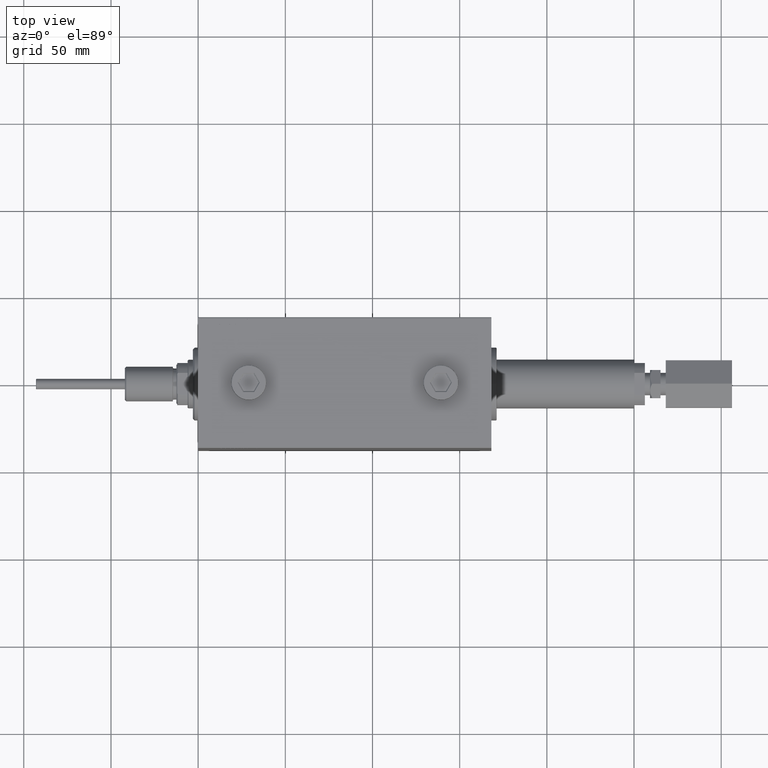
[diagram: clean part render]
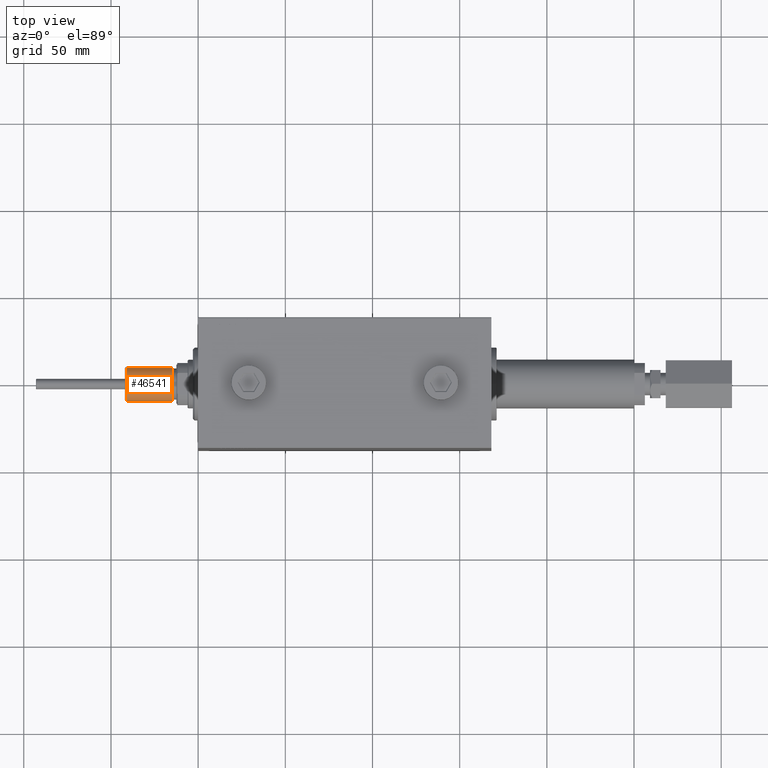
[diagram: same view with one face highlighted and labeled with its STEP entity id]
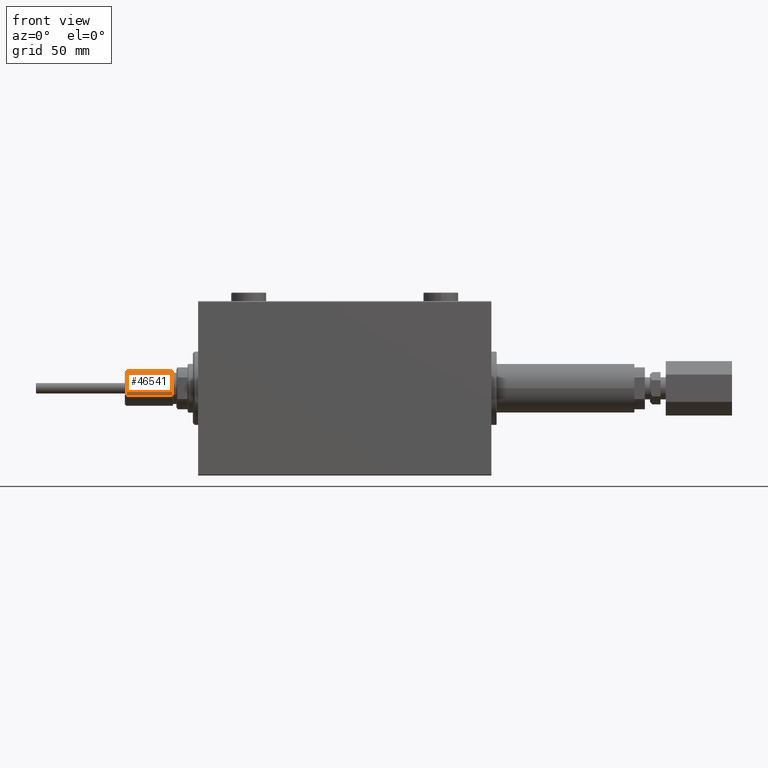
[diagram: same view with one face highlighted and labeled with its STEP entity id]
A machine part, top view. The second image highlights one B-rep face of the part: STEP entity #46541.
A second angle (front view) of the same face is appended — the face is thin or edge-on in the first view.
In plain terms, the highlighted cylindrical surface (edge-blend (fillet) strip) has radius 10 mm, axis along (-1, 0, 0).
Its self-contained STEP definition (entity closure, byte-faithful):
#149 = CIRCLE ( 'NONE', #35374, 10.00000000000000000 ) ;
#463 = DIRECTION ( 'NONE',  ( 1.000000000000000000, 0.000000000000000000, 0.000000000000000000 ) ) ;
#847 = AXIS2_PLACEMENT_3D ( 'NONE', #28318, #2336, #31988 ) ;
#2336 = DIRECTION ( 'NONE',  ( -0.000000000000000000, -0.000000000000000000, -1.000000000000000000 ) ) ;
#6896 = ORIENTED_EDGE ( 'NONE', *, *, #10957, .F. ) ;
#6944 = VERTEX_POINT ( 'NONE', #30708 ) ;
#10957 = EDGE_CURVE ( 'NONE', #19246, #6944, #20757, .T. ) ;
#13370 = CYLINDRICAL_SURFACE ( 'NONE', #847, 10.00000000000000000 ) ;
#14866 = EDGE_CURVE ( 'NONE', #21178, #6944, #29063, .T. ) ;
#15313 = EDGE_CURVE ( 'NONE', #25153, #19246, #149, .T. ) ;
#16538 = DIRECTION ( 'NONE',  ( -0.000000000000000000, -0.000000000000000000, 1.000000000000000000 ) ) ;
#17211 = VECTOR ( 'NONE', #44450, 1000.000000000000000 ) ;
#17741 = EDGE_LOOP ( 'NONE', ( #6896, #35948, #25313, #38781 ) ) ;
#19246 = VERTEX_POINT ( 'NONE', #35065 ) ;
#20458 = DIRECTION ( 'NONE',  ( 1.000000000000000000, 0.000000000000000000, 0.000000000000000000 ) ) ;
#20757 = LINE ( 'NONE', #40514, #17211 ) ;
#21178 = VERTEX_POINT ( 'NONE', #23567 ) ;
#22756 = CARTESIAN_POINT ( 'NONE',  ( 0.000000000000000000, 0.000000000000000000, 27.50000000000000000 ) ) ;
#23566 = AXIS2_PLACEMENT_3D ( 'NONE', #35649, #16538, #20458 ) ;
#23567 = CARTESIAN_POINT ( 'NONE',  ( -10.00000000000000000, 0.000000000000000000, 0.7999999999999986011 ) ) ;
#23737 = DIRECTION ( 'NONE',  ( -0.000000000000000000, -0.000000000000000000, -1.000000000000000000 ) ) ;
#24459 = LINE ( 'NONE', #47028, #38400 ) ;
#25153 = VERTEX_POINT ( 'NONE', #40532 ) ;
#25313 = ORIENTED_EDGE ( 'NONE', *, *, #44364, .T. ) ;
#28318 = CARTESIAN_POINT ( 'NONE',  ( 0.000000000000000000, 0.000000000000000000, 27.50000000000000000 ) ) ;
#28559 = FACE_OUTER_BOUND ( 'NONE', #17741, .T. ) ;
#29063 = CIRCLE ( 'NONE', #23566, 10.00000000000000000 ) ;
#30708 = CARTESIAN_POINT ( 'NONE',  ( 10.00000000000000000, 1.224646799147353256E-15, 0.7999999999999986011 ) ) ;
#31988 = DIRECTION ( 'NONE',  ( -1.000000000000000000, 0.000000000000000000, 0.000000000000000000 ) ) ;
#35065 = CARTESIAN_POINT ( 'NONE',  ( 10.00000000000000000, 1.224646799147353256E-15, 27.50000000000000000 ) ) ;
#35374 = AXIS2_PLACEMENT_3D ( 'NONE', #22756, #41378, #463 ) ;
#35649 = CARTESIAN_POINT ( 'NONE',  ( 0.000000000000000000, 0.000000000000000000, 0.7999999999999986011 ) ) ;
#35948 = ORIENTED_EDGE ( 'NONE', *, *, #15313, .F. ) ;
#38400 = VECTOR ( 'NONE', #23737, 1000.000000000000000 ) ;
#38781 = ORIENTED_EDGE ( 'NONE', *, *, #14866, .T. ) ;
#40514 = CARTESIAN_POINT ( 'NONE',  ( 10.00000000000000000, 1.224646799147353256E-15, 27.50000000000000000 ) ) ;
#40532 = CARTESIAN_POINT ( 'NONE',  ( -10.00000000000000000, 0.000000000000000000, 27.50000000000000000 ) ) ;
#41378 = DIRECTION ( 'NONE',  ( 0.000000000000000000, 0.000000000000000000, 1.000000000000000000 ) ) ;
#44364 = EDGE_CURVE ( 'NONE', #25153, #21178, #24459, .T. ) ;
#44450 = DIRECTION ( 'NONE',  ( -0.000000000000000000, -0.000000000000000000, -1.000000000000000000 ) ) ;
#46541 = ADVANCED_FACE ( 'NONE', ( #28559 ), #13370, .T. ) ;
#47028 = CARTESIAN_POINT ( 'NONE',  ( -10.00000000000000000, 0.000000000000000000, 27.50000000000000000 ) ) ;